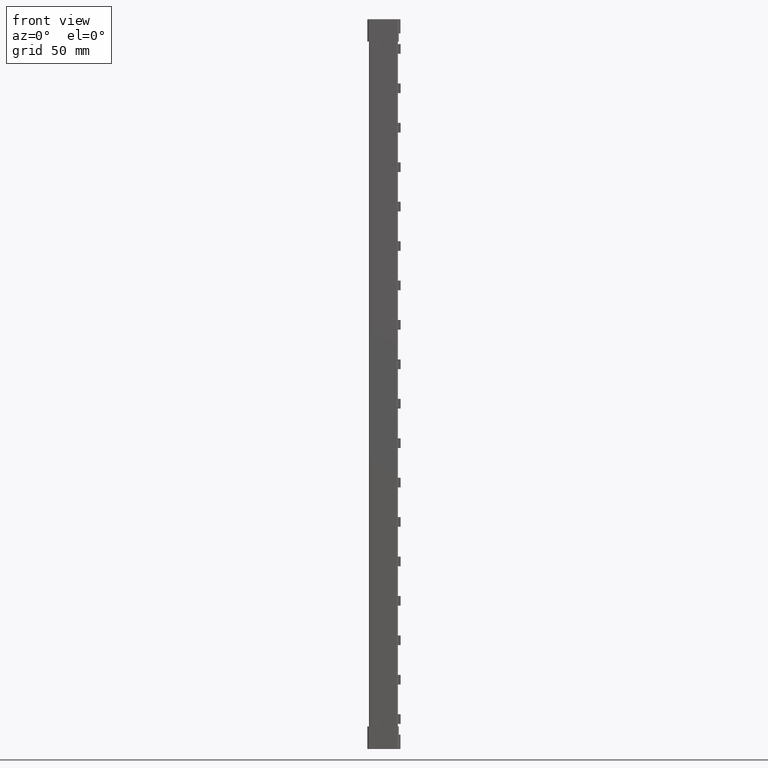
[diagram: clean part render]
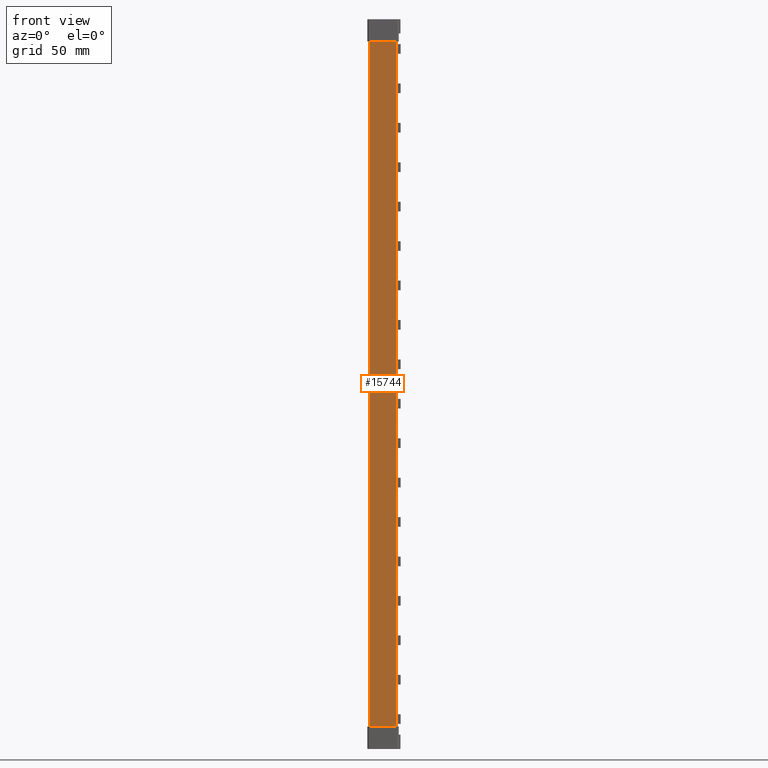
[diagram: same view with one face highlighted and labeled with its STEP entity id]
A machine part, front view. The second image highlights one B-rep face of the part: STEP entity #15744.
In plain terms, the highlighted planar face has unit normal (-0, 1, 0).
Its self-contained STEP definition (entity closure, byte-faithful):
#358 = EDGE_CURVE ( 'NONE', #27056, #27006, #19542, .T. ) ;
#363 = EDGE_CURVE ( 'NONE', #27000, #27072, #19630, .T. ) ;
#364 = EDGE_CURVE ( 'NONE', #27006, #27000, #19626, .T. ) ;
#380 = EDGE_CURVE ( 'NONE', #27072, #27056, #19657, .T. ) ;
#1505 = VECTOR ( 'NONE', #19642, 1000.000000000000100 ) ;
#1514 = VECTOR ( 'NONE', #19543, 1000.000000000000000 ) ;
#1515 = VECTOR ( 'NONE', #19631, 1000.000000000000000 ) ;
#1553 = VECTOR ( 'NONE', #19632, 1000.000000000000100 ) ;
#4383 = AXIS2_PLACEMENT_3D ( 'NONE', #13093, #13095, #13096 ) ;
#6859 = CARTESIAN_POINT ( 'NONE',  ( 11.80192812922068800, 1.341396426129180200E-007, 209.9000000000000100 ) ) ;
#6860 = CARTESIAN_POINT ( 'NONE',  ( 1.775924185466179700E-010, 5.645470763082235400E-014, 209.9000000000000100 ) ) ;
#6936 = CARTESIAN_POINT ( 'NONE',  ( 3.551845207660697900E-009, 5.560781255305260200E-014, -95.90000000000003400 ) ) ;
#6947 = CARTESIAN_POINT ( 'NONE',  ( 11.80192812959287400, 1.341396424575525100E-007, -95.90000000000011900 ) ) ;
#7853 = ORIENTED_EDGE ( 'NONE', *, *, #380, .F. ) ;
#7877 = ORIENTED_EDGE ( 'NONE', *, *, #364, .F. ) ;
#7884 = ORIENTED_EDGE ( 'NONE', *, *, #363, .F. ) ;
#7911 = ORIENTED_EDGE ( 'NONE', *, *, #358, .F. ) ;
#13093 = CARTESIAN_POINT ( 'NONE',  ( 0.0000000000000000000, 5.551115123125782700E-014, 219.0000000000000000 ) ) ;
#13095 = DIRECTION ( 'NONE',  ( -1.136590436583420300E-008, 1.000000000000000000, 0.0000000000000000000 ) ) ;
#13096 = DIRECTION ( 'NONE',  ( -0.9999999999999998900, -1.136590436583420100E-008, 0.0000000000000000000 ) ) ;
#13097 = PLANE ( 'NONE',  #4383 ) ;
#13099 = FACE_OUTER_BOUND ( 'NONE', #26539, .T. ) ;
#15744 = ADVANCED_FACE ( 'NONE', ( #13099 ), #13097, .F. ) ;
#19542 = LINE ( 'NONE', #19570, #1514 ) ;
#19543 = DIRECTION ( 'NONE',  ( 0.0000000000000000000, 0.0000000000000000000, 1.000000000000000000 ) ) ;
#19570 = CARTESIAN_POINT ( 'NONE',  ( 1.420737955481827200E-009, 5.552729920298874600E-014, 219.0000000000000000 ) ) ;
#19605 = CARTESIAN_POINT ( 'NONE',  ( 0.0000000000000000000, 5.551115123125782700E-014, 209.9000000000000100 ) ) ;
#19610 = CARTESIAN_POINT ( 'NONE',  ( 11.80192812922068900, 1.341396419603221500E-007, 219.0000000000000000 ) ) ;
#19626 = LINE ( 'NONE', #19605, #1553 ) ;
#19630 = LINE ( 'NONE', #19610, #1515 ) ;
#19631 = DIRECTION ( 'NONE',  ( -0.0000000000000000000, -0.0000000000000000000, -1.000000000000000000 ) ) ;
#19632 = DIRECTION ( 'NONE',  ( 0.9999999999999998900, 1.136590436583420100E-008, -0.0000000000000000000 ) ) ;
#19642 = DIRECTION ( 'NONE',  ( -0.9999999999999998900, -1.136590436583420100E-008, 0.0000000000000000000 ) ) ;
#19657 = LINE ( 'NONE', #19668, #1505 ) ;
#19668 = CARTESIAN_POINT ( 'NONE',  ( 0.0000000000000000000, 5.551115123125782700E-014, -95.90000000000023300 ) ) ;
#26539 = EDGE_LOOP ( 'NONE', ( #7877, #7911, #7853, #7884 ) ) ;
#27000 = VERTEX_POINT ( 'NONE', #6859 ) ;
#27006 = VERTEX_POINT ( 'NONE', #6860 ) ;
#27056 = VERTEX_POINT ( 'NONE', #6936 ) ;
#27072 = VERTEX_POINT ( 'NONE', #6947 ) ;